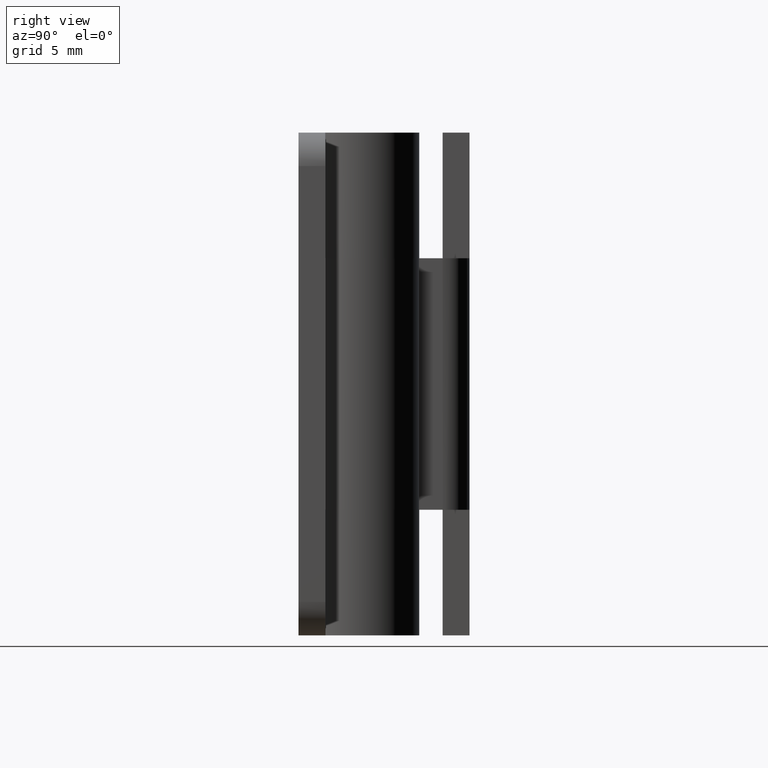
[diagram: clean part render]
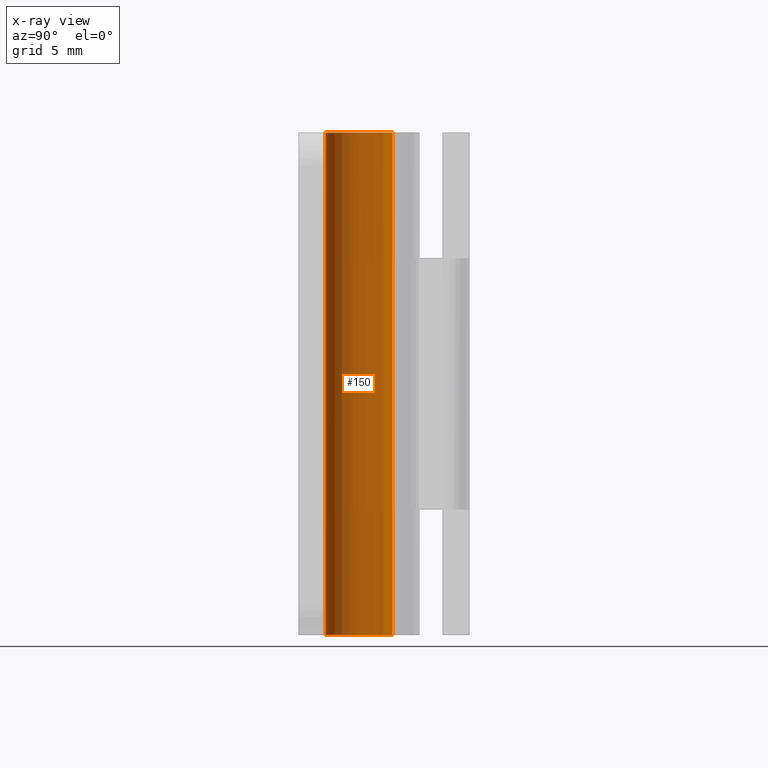
[diagram: x-ray — body ghosted, one internal face saturated and labeled with its STEP entity id]
A machine part, right view, then the same camera in x-ray: the body is ghosted and one INTERNAL B-rep face — a face not visible from any outside direction — is saturated and labeled: STEP entity #150.
In plain terms, the highlighted face is a freeform B-spline surface patch.
Its self-contained STEP definition (entity closure, byte-faithful):
#44=CARTESIAN_POINT('',(0.265541762350920,-1.982515705081491,30.750000000000011));
#45=CARTESIAN_POINT('',(0.250763563083323,-1.984272318078493,30.750000000000018));
#46=CARTESIAN_POINT('',(0.179229457275955,-1.992775230897211,30.750000000000007));
#47=CARTESIAN_POINT('',(0.122097079069714,-1.996269596843733,30.750000000000000));
#48=CARTESIAN_POINT('',(-1.874172517774020,-2.118366675913447,30.750000000000004));
#49=CARTESIAN_POINT('',(-1.996269596843733,-0.122097079069714,30.750000000000000));
#50=CARTESIAN_POINT('',(-2.118366675913447,1.874172517774020,30.750000000000004));
#51=CARTESIAN_POINT('',(-0.107740050417313,1.997147710333691,30.750000000000014));
#52=CARTESIAN_POINT('',(-0.093468306717904,1.998020607572462,30.749999999999993));
#53=CARTESIAN_POINT('',(0.265541762350920,-1.982515705081491,-0.768750000000001));
#54=CARTESIAN_POINT('',(0.250763563083323,-1.984272318078493,-0.768750000000001));
#55=CARTESIAN_POINT('',(0.179229457275955,-1.992775230897211,-0.768750000000001));
#56=CARTESIAN_POINT('',(0.122097079069714,-1.996269596843733,-0.768750000000001));
#57=CARTESIAN_POINT('',(-1.874172517774020,-2.118366675913447,-0.768750000000001));
#58=CARTESIAN_POINT('',(-1.996269596843733,-0.122097079069714,-0.768750000000001));
#59=CARTESIAN_POINT('',(-2.118366675913447,1.874172517774020,-0.768750000000001));
#60=CARTESIAN_POINT('',(-0.107740050417313,1.997147710333691,-0.768750000000001));
#61=CARTESIAN_POINT('',(-0.093468306717904,1.998020607572462,-0.768750000000000));
#69=(BOUNDED_SURFACE()B_SPLINE_SURFACE(2,1,((#44,#53),(#45,#54),(#46,#55),(#47,#56),(#48,#57),(#49,#58),(#50,#59),(#51,#60),(#52,#61)),.UNSPECIFIED.,.F.,.F.,.U.)B_SPLINE_SURFACE_WITH_KNOTS((3,1,2,2,1,3),(2,2),(0.0,0.033799847598702,0.166348187558092,3.480056686542851,6.793765185527611,6.827569362432394),(0.0,31.518750000000018),.UNSPECIFIED.)GEOMETRIC_REPRESENTATION_ITEM()RATIONAL_B_SPLINE_SURFACE(((0.972008777463900,0.972008777463900),(0.974757289129514,0.974757289129514),(0.988284271247462,0.988284271247462),(1.0,1.0),(0.707106781186548,0.707106781186548),(1.0,1.0),(0.707106781186548,0.707106781186548),(1.002987895340225,1.002987895340225),(1.005975790680451,1.005975790680451)))REPRESENTATION_ITEM('')SURFACE());
#70=CARTESIAN_POINT('',(0.236068469328979,-1.986019052725495,-1.703657E-015));
#71=VERTEX_POINT('',#70);
#72=CARTESIAN_POINT('',(-2.0,0.0,0.0));
#73=VERTEX_POINT('',#72);
#74=CARTESIAN_POINT('',(0.236068469328979,-1.986019052725495,-1.703657E-015));
#75=CARTESIAN_POINT('',(0.118448239319446,-2.000000000000000,0.0));
#76=CARTESIAN_POINT('',(0.0,-2.0,0.0));
#77=CARTESIAN_POINT('',(-2.000000000000000,-2.000000000000000,0.0));
#78=CARTESIAN_POINT('',(-2.0,0.0,0.0));
#86=(BOUNDED_CURVE()B_SPLINE_CURVE(2,(#74,#75,#76,#77,#78),.UNSPECIFIED.,.F.,.U.)B_SPLINE_CURVE_WITH_KNOTS((3,2,3),(0.229562473513013,0.250000000000000,0.500000000000000),.UNSPECIFIED.)CURVE()GEOMETRIC_REPRESENTATION_ITEM()RATIONAL_B_SPLINE_CURVE((0.956026754182728,0.976055948330564,1.0,0.707106781186548,1.0))REPRESENTATION_ITEM(''));
#87=EDGE_CURVE('',#71,#73,#86,.T.);
#88=ORIENTED_EDGE('',*,*,#87,.F.);
#89=CARTESIAN_POINT('',(0.236068469328979,-1.986019052725495,30.0));
#90=VERTEX_POINT('',#89);
#91=CARTESIAN_POINT('',(0.236068469328979,-1.986019052725495,30.0));
#92=CARTESIAN_POINT('',(0.236068469328979,-1.986019052725495,-1.703657E-015));
#93=QUASI_UNIFORM_CURVE('',1,(#91,#92),.UNSPECIFIED.,.F.,.U.);
#94=EDGE_CURVE('',#90,#71,#93,.T.);
#95=ORIENTED_EDGE('',*,*,#94,.F.);
#96=CARTESIAN_POINT('',(-2.0,0.0,30.0));
#97=VERTEX_POINT('',#96);
#98=CARTESIAN_POINT('',(0.236068469328979,-1.986019052725495,30.000000000000004));
#99=CARTESIAN_POINT('',(0.118448239319446,-2.000000000000000,30.0));
#100=CARTESIAN_POINT('',(0.0,-2.0,30.0));
#101=CARTESIAN_POINT('',(-2.000000000000000,-2.000000000000000,30.000000000000004));
#102=CARTESIAN_POINT('',(-2.0,0.0,30.0));
#110=(BOUNDED_CURVE()B_SPLINE_CURVE(2,(#98,#99,#100,#101,#102),.UNSPECIFIED.,.F.,.U.)B_SPLINE_CURVE_WITH_KNOTS((3,2,3),(0.229562473513013,0.250000000000000,0.500000000000000),.UNSPECIFIED.)CURVE()GEOMETRIC_REPRESENTATION_ITEM()RATIONAL_B_SPLINE_CURVE((0.956026754182728,0.976055948330564,1.0,0.707106781186548,1.0))REPRESENTATION_ITEM(''));
#111=EDGE_CURVE('',#90,#97,#110,.T.);
#112=ORIENTED_EDGE('',*,*,#111,.T.);
#113=CARTESIAN_POINT('',(-0.122093436056999,1.996269819653264,30.0));
#114=VERTEX_POINT('',#113);
#115=CARTESIAN_POINT('',(-2.0,0.0,30.0));
#116=CARTESIAN_POINT('',(-1.999999999999999,1.881415573638085,30.0));
#117=CARTESIAN_POINT('',(-0.122093436056999,1.996269819653264,29.999999999999996));
#125=(BOUNDED_CURVE()B_SPLINE_CURVE(2,(#115,#116,#117),.UNSPECIFIED.,.F.,.U.)B_SPLINE_CURVE_WITH_KNOTS((3,3),(0.500000000000000,0.739333277124436),.UNSPECIFIED.)CURVE()GEOMETRIC_REPRESENTATION_ITEM()RATIONAL_B_SPLINE_CURVE((1.0,0.719603624375408,0.976072716527199))REPRESENTATION_ITEM(''));
#126=EDGE_CURVE('',#97,#114,#125,.T.);
#127=ORIENTED_EDGE('',*,*,#126,.T.);
#128=CARTESIAN_POINT('',(-0.122093390652916,1.996269822430129,7.049916E-015));
#129=VERTEX_POINT('',#128);
#130=CARTESIAN_POINT('',(-0.122093436056999,1.996269819653264,30.0));
#131=CARTESIAN_POINT('',(-0.122093390652916,1.996269822430129,7.049916E-015));
#132=QUASI_UNIFORM_CURVE('',1,(#130,#131),.UNSPECIFIED.,.F.,.U.);
#133=EDGE_CURVE('',#114,#129,#132,.T.);
#134=ORIENTED_EDGE('',*,*,#133,.T.);
#135=CARTESIAN_POINT('',(-2.0,0.0,0.0));
#136=CARTESIAN_POINT('',(-2.000000000000000,1.881415616509825,0.0));
#137=CARTESIAN_POINT('',(-0.122093390652916,1.996269822430129,7.049916E-015));
#145=(BOUNDED_CURVE()B_SPLINE_CURVE(2,(#135,#136,#137),.UNSPECIFIED.,.F.,.U.)B_SPLINE_CURVE_WITH_KNOTS((3,3),(0.500000000000000,0.739333281048922),.UNSPECIFIED.)CURVE()GEOMETRIC_REPRESENTATION_ITEM()RATIONAL_B_SPLINE_CURVE((1.0,0.719603619777586,0.976072724938143))REPRESENTATION_ITEM(''));
#146=EDGE_CURVE('',#73,#129,#145,.T.);
#147=ORIENTED_EDGE('',*,*,#146,.F.);
#148=EDGE_LOOP('',(#88,#95,#112,#127,#134,#147));
#149=FACE_OUTER_BOUND('',#148,.T.);
#150=ADVANCED_FACE('',(#149),#69,.T.);